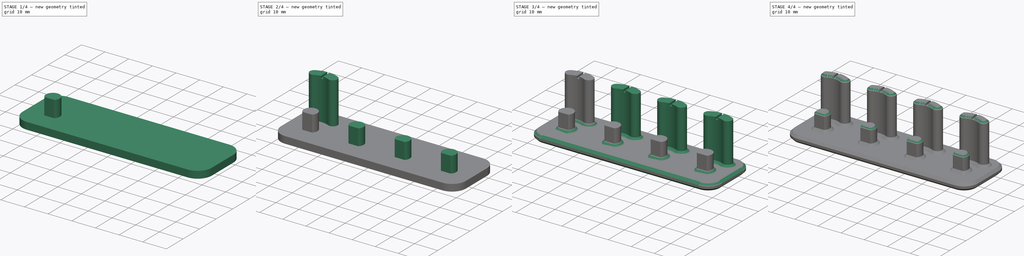
[diagram: build sequence overview — one tinted view per stage of 4, left to right]
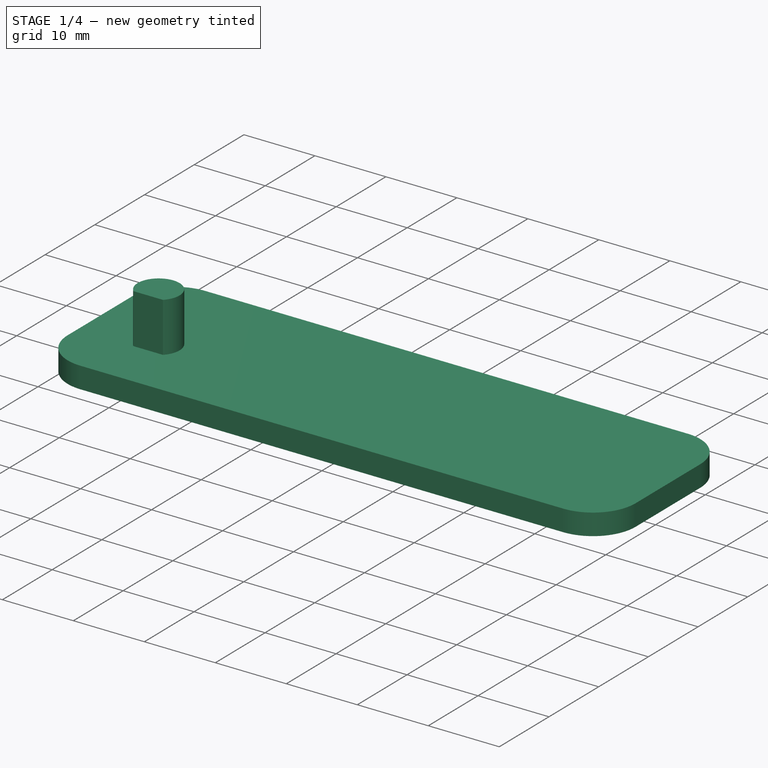
[diagram: stage 1 of 4 — iso view after this stage's code; geometry added in this stage tinted green]
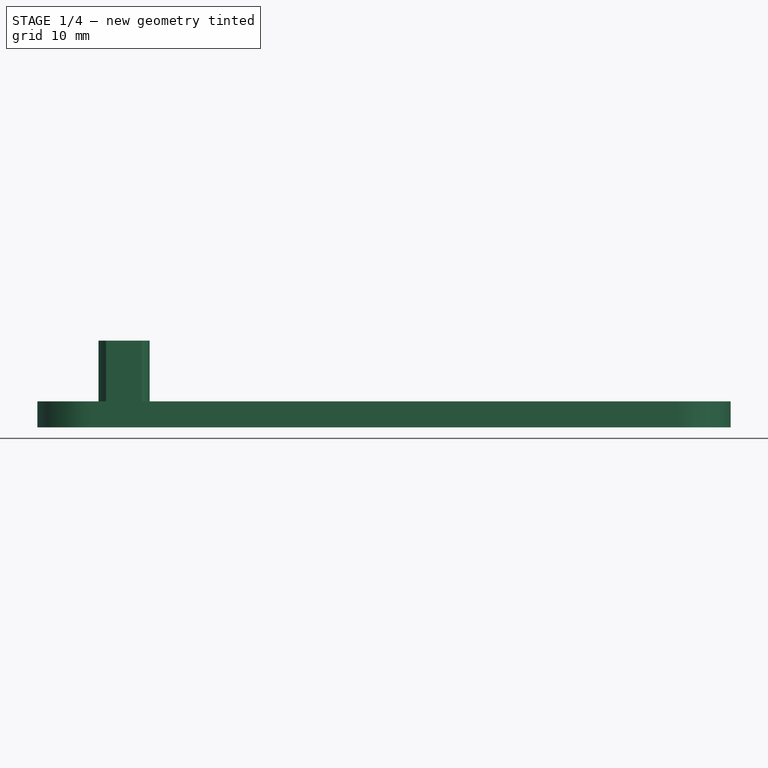
[diagram: stage 1 of 4 — front view after this stage's code; geometry added in this stage tinted green]
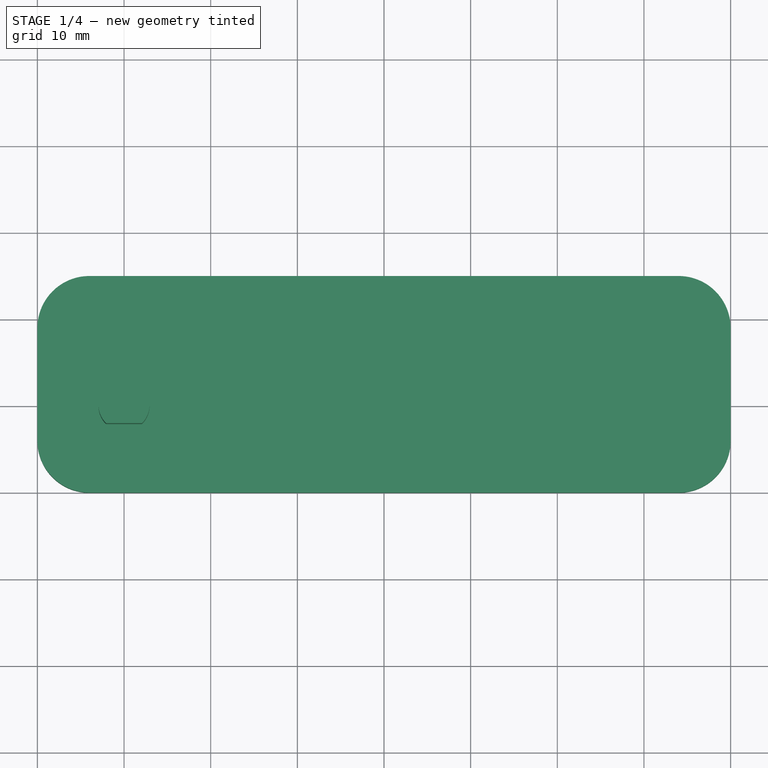
[diagram: stage 1 of 4 — top view after this stage's code; geometry added in this stage tinted green]
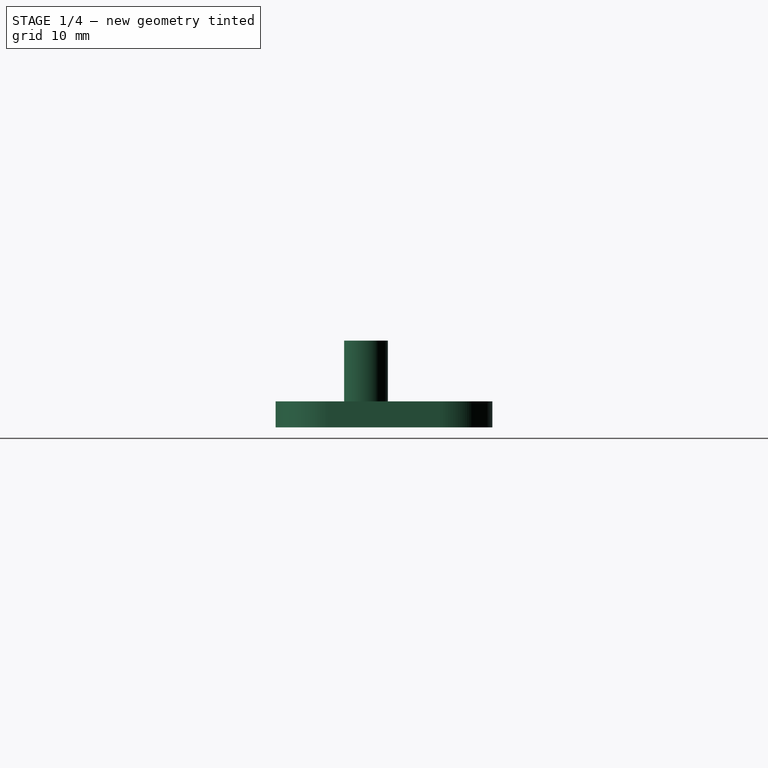
[diagram: stage 1 of 4 — right view after this stage's code; geometry added in this stage tinted green]
FCSTD DOCUMENT  (FreeCAD 0.18R4 (GitTag))
Label: pot_cap_alignment_jig
License: All rights reserved
LicenseURL: http://en.wikipedia.org/wiki/All_rights_reserved
objects: Sketcher::SketchObject×4, PartDesign::Pad×3, PartDesign::LinearPattern×3, PartDesign::Chamfer×3, PartDesign::Pocket×1, PartDesign::Body×1
note: 19 computed .brp shape members not serialized (recipe doc carries the construction recipe); baked Part::Feature solids carry a one-line shape summary decoded from their .brp

FEATURE [Sketcher::SketchObject] Sketch
  MapMode = 5
  Support = -> [XY_Plane]
  sketch-geometry (10):
    g0: LineSegment StartX=-34 StartY=15 StartZ=0 EndX=34 EndY=15 EndZ=0
    g1: LineSegment StartX=40 StartY=9 StartZ=0 EndX=40 EndY=-4 EndZ=0
    g2: LineSegment StartX=34 StartY=-10 StartZ=0 EndX=-34 EndY=-10 EndZ=0
    g3: LineSegment StartX=-40 StartY=-4 StartZ=0 EndX=-40 EndY=9 EndZ=0
    g4: ArcOfCircle CenterX=-34 CenterY=9 CenterZ=0 NormalX=0 NormalY=0 NormalZ=1 AngleXU=0 Radius=6 StartAngle=1.5708 EndAngle=3.14159
    g5: ArcOfCircle CenterX=34 CenterY=9 CenterZ=0 NormalX=0 NormalY=0 NormalZ=1 AngleXU=0 Radius=6 StartAngle=0 EndAngle=1.5708
    g6: ArcOfCircle CenterX=34 CenterY=-4 CenterZ=0 NormalX=0 NormalY=0 NormalZ=1 AngleXU=0 Radius=6 StartAngle=4.71239 EndAngle=6.28319
    g7: ArcOfCircle CenterX=-34 CenterY=-4 CenterZ=0 NormalX=0 NormalY=0 NormalZ=1 AngleXU=0 Radius=6 StartAngle=3.14159 EndAngle=4.71239
    g8: LineSegment [constr] StartX=-34 StartY=9 StartZ=0 EndX=0 EndY=0 EndZ=0
    g9: LineSegment [constr] StartX=0 StartY=0 StartZ=0 EndX=34 EndY=9 EndZ=0
  constraints (24):
    c: Horizontal(g0)
    c: Horizontal(g2)
    c: Vertical(g1)
    c: Vertical(g3)
    c: Tangent(g3,g4) = 1.5708
    c: Tangent(g0,g4) = 1.5708
    c: Tangent(g0,g5) = 1.5708
    c: Tangent(g1,g5) = 1.5708
    c: Tangent(g1,g6) = 1.5708
    c: Tangent(g2,g6) = 1.5708
    c: Tangent(g2,g7) = 1.5708
    c: Tangent(g3,g7) = 1.5708
    c: Equal(g7,g4)
    c: Equal(g4,g5)
    c: Equal(g5,g6)
    c: Coincident(g8,g4)
    c: Coincident(g8,g-1)
    c: Coincident(g8,g9)
    c: Coincident(g9,g5)
    c: Equal(g8,g9)
    c: DistanceX(g3,g1) = 80
    c: Radius(g4) = 6
    c: DistanceY(g-1,g0) = 15
    c: DistanceY(g2,g-1) = 10
FEATURE [PartDesign::Pad] Pad
  Length = 3
  Length2 = 100
  Profile = -> Sketch
  Type = 0
FEATURE [Sketcher::SketchObject] Sketch001
  MapMode = 5
  Placement = pos=(0,0,3) rot=(0,0,1;0rad)
  Support = -> [Pad]
  sketch-geometry (2):
    g0: LineSegment StartX=-32.0718 StartY=-2.1 StartZ=0 EndX=-27.9282 EndY=-2.1 EndZ=0
    g1: ArcOfCircle CenterX=-30 CenterY=0 CenterZ=0 NormalX=0 NormalY=0 NormalZ=1 AngleXU=0 Radius=2.95 StartAngle=5.49104 EndAngle=10.2169
  constraints (7):
    c: Horizontal(g0)
    c: Coincident(g1,g0)
    c: Coincident(g1,g0)
    c: Diameter(g1) = 5.9
    c: DistanceY(g0,g1) = 2.1
    c: PointOnObject(g1,g-1)
    c: DistanceX(g1,g-1) = 30
FEATURE [PartDesign::Pad] Pad001
  BaseFeature = -> Pad
  Length = 7
  Length2 = 100
  Profile = -> Sketch001
  Type = 0
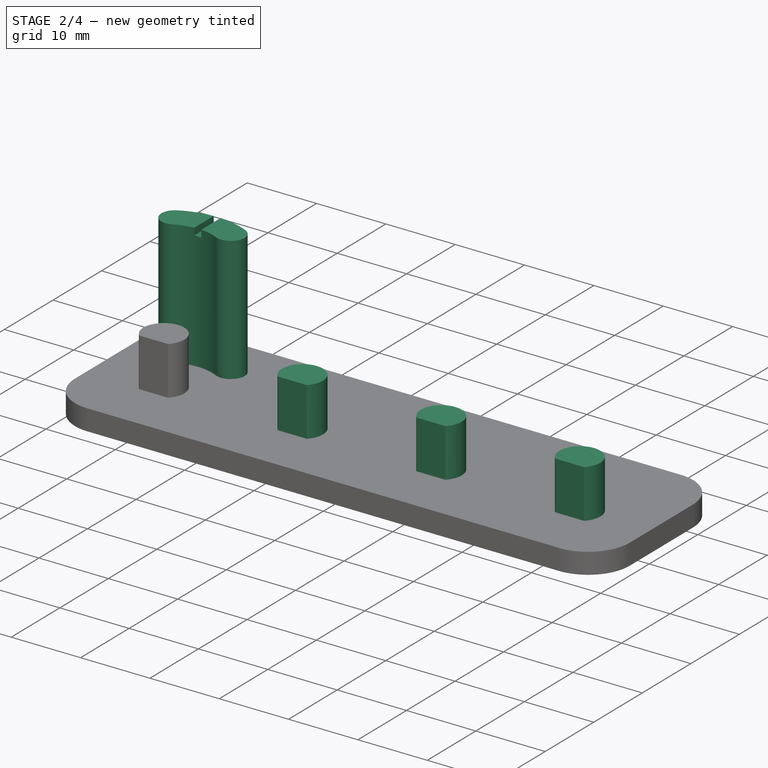
[diagram: stage 2 of 4 — iso view after this stage's code; geometry added in this stage tinted green]
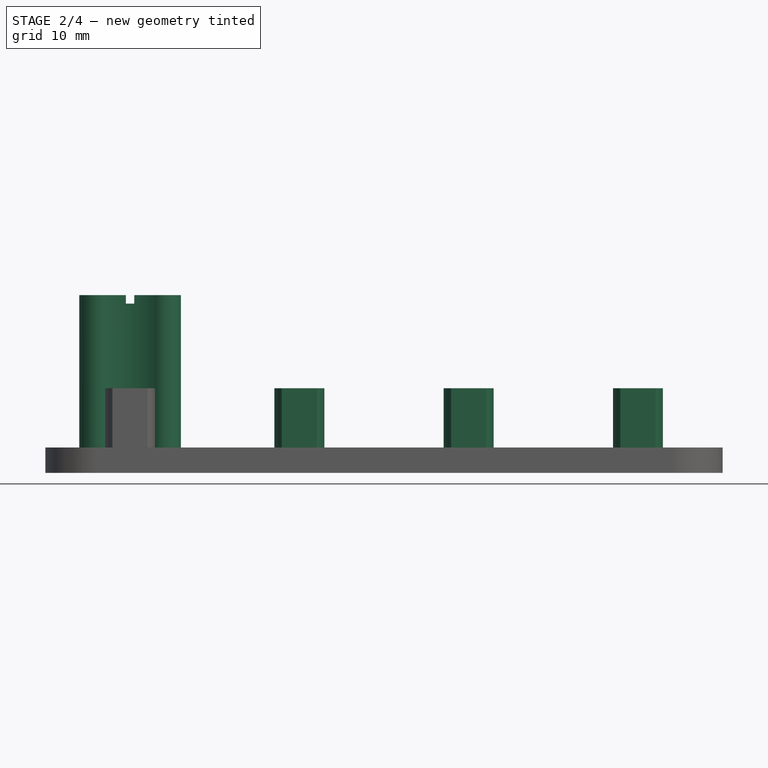
[diagram: stage 2 of 4 — front view after this stage's code; geometry added in this stage tinted green]
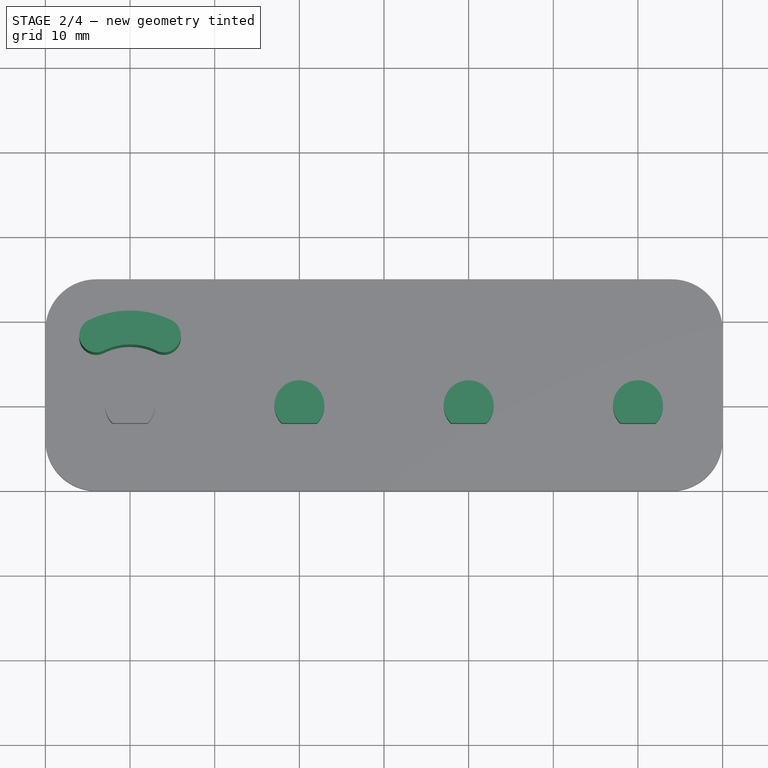
[diagram: stage 2 of 4 — top view after this stage's code; geometry added in this stage tinted green]
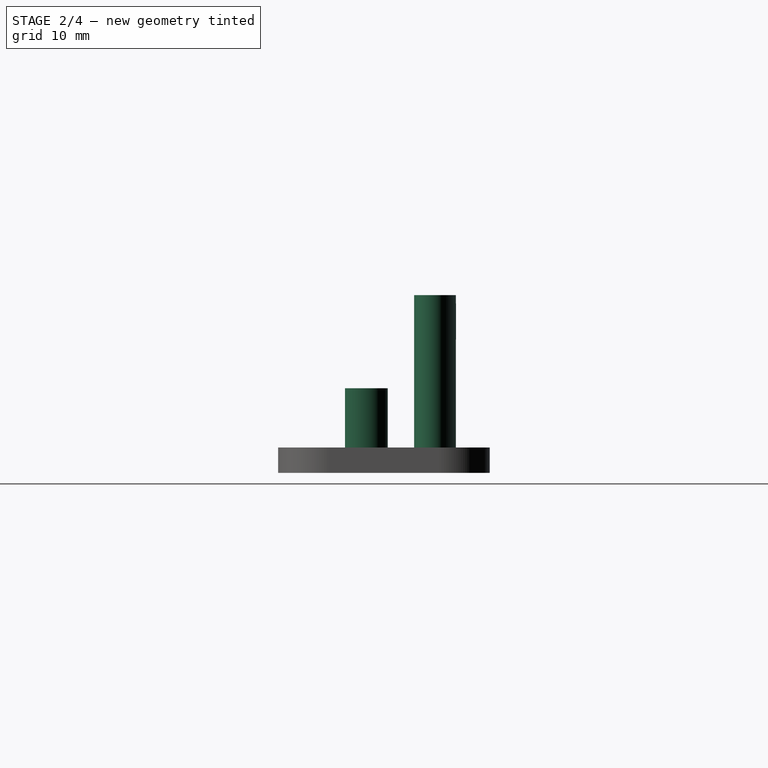
[diagram: stage 2 of 4 — right view after this stage's code; geometry added in this stage tinted green]
FEATURE [Sketcher::SketchObject] Sketch002
  MapMode = 5
  Placement = pos=(0,0,3) rot=(0,0,1;0rad)
  Support = -> [Pad001]
  sketch-geometry (6):
    g0: ArcOfCircle CenterX=-30 CenterY=0 CenterZ=0 NormalX=0 NormalY=0 NormalZ=1 AngleXU=0 Radius=7 StartAngle=1.11024 EndAngle=2.03135
    g1: ArcOfCircle CenterX=-30 CenterY=0 CenterZ=0 NormalX=0 NormalY=0 NormalZ=1 AngleXU=0 Radius=11 StartAngle=1.11024 EndAngle=2.03135
    g2: ArcOfCircle CenterX=-34 CenterY=8.06226 CenterZ=0 NormalX=0 NormalY=0 NormalZ=1 AngleXU=0 Radius=2 StartAngle=2.03135 EndAngle=5.17294
    g3: ArcOfCircle CenterX=-26 CenterY=8.06226 CenterZ=0 NormalX=0 NormalY=0 NormalZ=1 AngleXU=0 Radius=2 StartAngle=4.25183 EndAngle=7.39343
    g4: LineSegment [constr] StartX=-34 StartY=8.06226 StartZ=0 EndX=-34 EndY=0 EndZ=0
    g5: LineSegment [constr] StartX=-26 StartY=8.06226 StartZ=0 EndX=-26 EndY=0 EndZ=0
  constraints (17):
    c: PointOnObject(g0,g-1)
    c: Coincident(g1,g0)
    c: Tangent(g2,g1) = -1.5708
    c: Tangent(g3,g1) = -1.5708
    c: Tangent(g3,g0) = 1.5708
    c: Tangent(g2,g0) = 1.5708
    c: Coincident(g4,g2)
    c: PointOnObject(g4,g-1)
    c: Vertical(g4)
    c: Coincident(g5,g3)
    c: PointOnObject(g5,g-1)
    c: Vertical(g5)
    c: Equal(g5,g4)
    c: DistanceX(g0,g-1) = 30
    c: Diameter(g2) = 4
    c: Radius(g0) = 7
    c: DistanceX(g2,g3) = 8
FEATURE [PartDesign::Pad] Pad002
  BaseFeature = -> Pad001
  Length = 18
  Length2 = 100
  Profile = -> Sketch002
  Type = 0
FEATURE [Sketcher::SketchObject] Sketch003
  MapMode = 5
  Placement = pos=(0,0,21) rot=(0,0,1;0rad)
  Support = -> [Pad002]
  sketch-geometry (6):
    g0: LineSegment StartX=-30.5 StartY=14.8544 StartZ=0 EndX=-29.5 EndY=14.8544 EndZ=0
    g1: LineSegment StartX=-29.5 StartY=14.8544 StartZ=0 EndX=-29.5 EndY=4.52572 EndZ=0
    g2: LineSegment StartX=-29.5 StartY=4.52572 StartZ=0 EndX=-30.5 EndY=4.52572 EndZ=0
    g3: LineSegment StartX=-30.5 StartY=4.52572 StartZ=0 EndX=-30.5 EndY=14.8544 EndZ=0
    g4: LineSegment [constr] StartX=-30.5 StartY=4.52572 StartZ=0 EndX=-30 EndY=0 EndZ=0
    g5: LineSegment [constr] StartX=-30 StartY=0 StartZ=0 EndX=-29.5 EndY=4.52572 EndZ=0
  constraints (15):
    c: Coincident(g0,g1)
    c: Coincident(g1,g2)
    c: Coincident(g2,g3)
    c: Coincident(g3,g0)
    c: Horizontal(g0)
    c: Horizontal(g2)
    c: Vertical(g1)
    c: Vertical(g3)
    c: Coincident(g2,g4)
    c: PointOnObject(g4,g-1)
    c: Coincident(g4,g5)
    c: Coincident(g5,g1)
    c: Equal(g5,g4)
    c: DistanceX(g4,g-1) = 30
    c: DistanceX(g0,g0) = 1
FEATURE [PartDesign::Pocket] Pocket
  BaseFeature = -> Pad002
  Length = 1
  Length2 = 100
  Profile = -> Sketch003
  Type = 0
FEATURE [PartDesign::LinearPattern] LinearPattern
  BaseFeature = -> Pocket
  Direction = -> X_Axis
  Length = 60
  Occurrences = 4
  Originals = -> [Pad001]
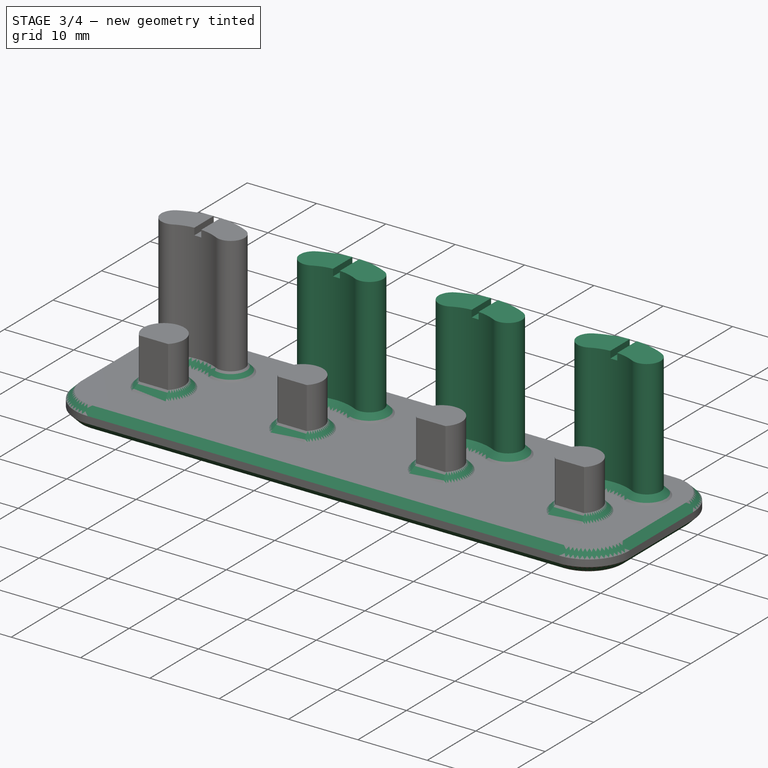
[diagram: stage 3 of 4 — iso view after this stage's code; geometry added in this stage tinted green]
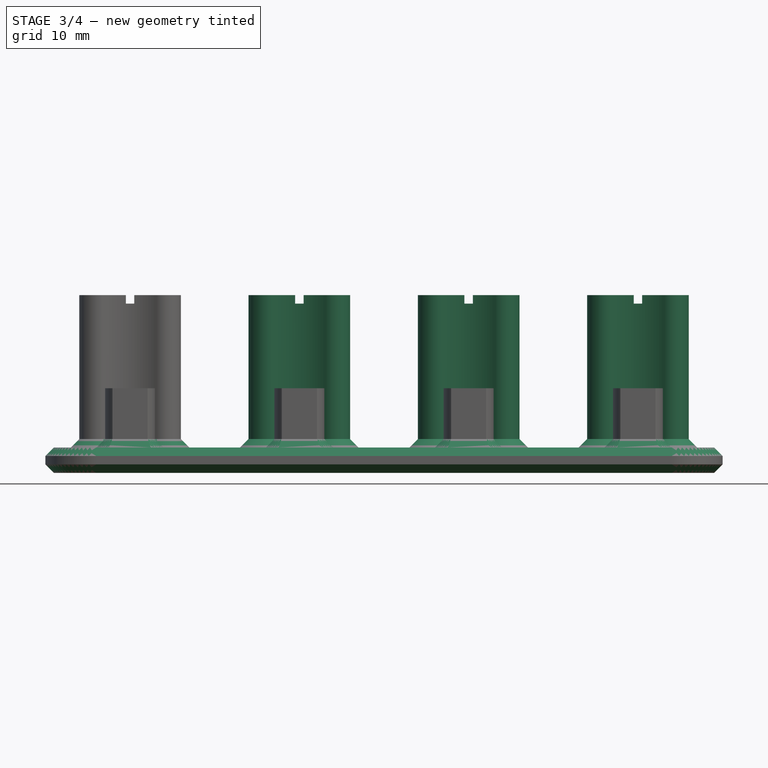
[diagram: stage 3 of 4 — front view after this stage's code; geometry added in this stage tinted green]
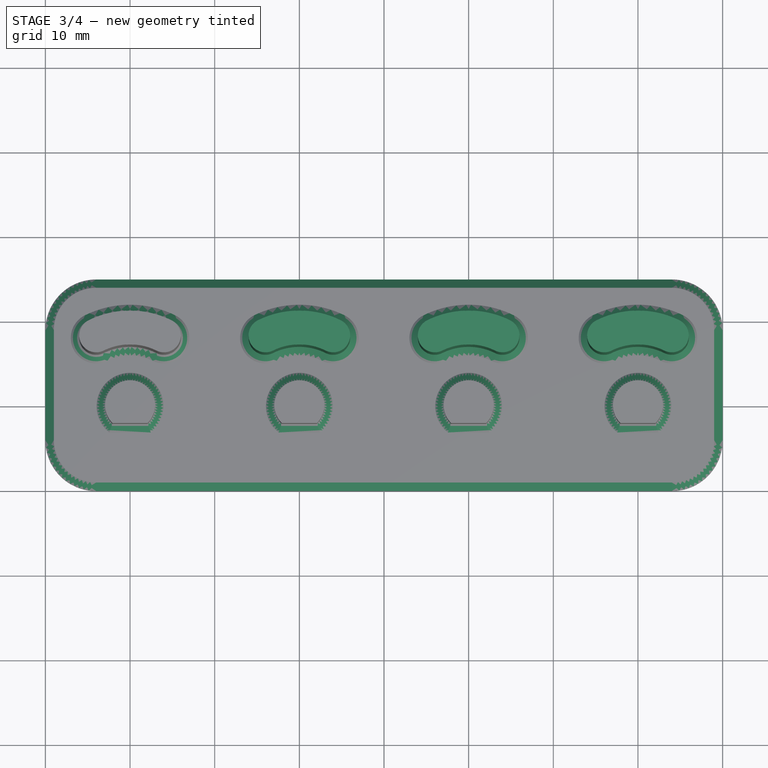
[diagram: stage 3 of 4 — top view after this stage's code; geometry added in this stage tinted green]
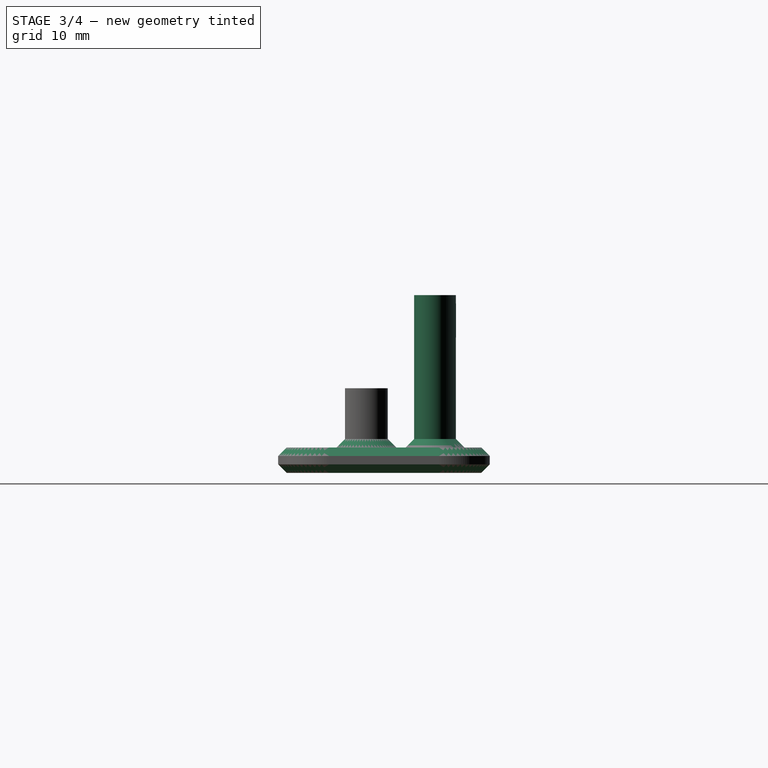
[diagram: stage 3 of 4 — right view after this stage's code; geometry added in this stage tinted green]
FEATURE [PartDesign::LinearPattern] LinearPattern001
  BaseFeature = -> LinearPattern
  Direction = -> X_Axis
  Length = 60
  Occurrences = 4
  Originals = -> [Pad002]
FEATURE [PartDesign::LinearPattern] LinearPattern002
  BaseFeature = -> LinearPattern001
  Direction = -> X_Axis
  Length = 60
  Occurrences = 4
  Originals = -> [Pocket]
FEATURE [PartDesign::Chamfer] Chamfer
  Base = -> LinearPattern002 [Face5,Face4]
  BaseFeature = -> LinearPattern002
  Size = 1
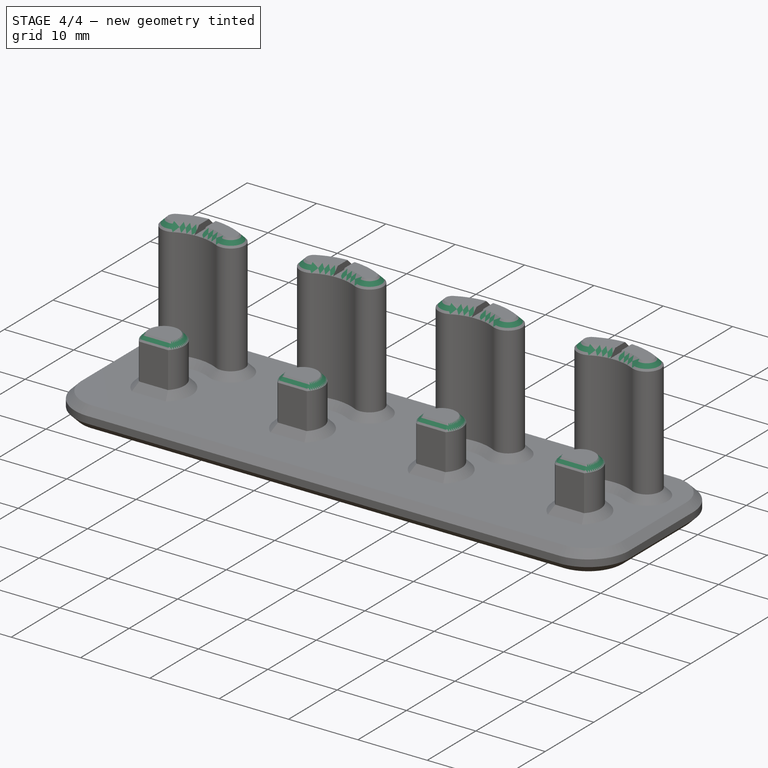
[diagram: stage 4 of 4 — iso view after this stage's code; geometry added in this stage tinted green]
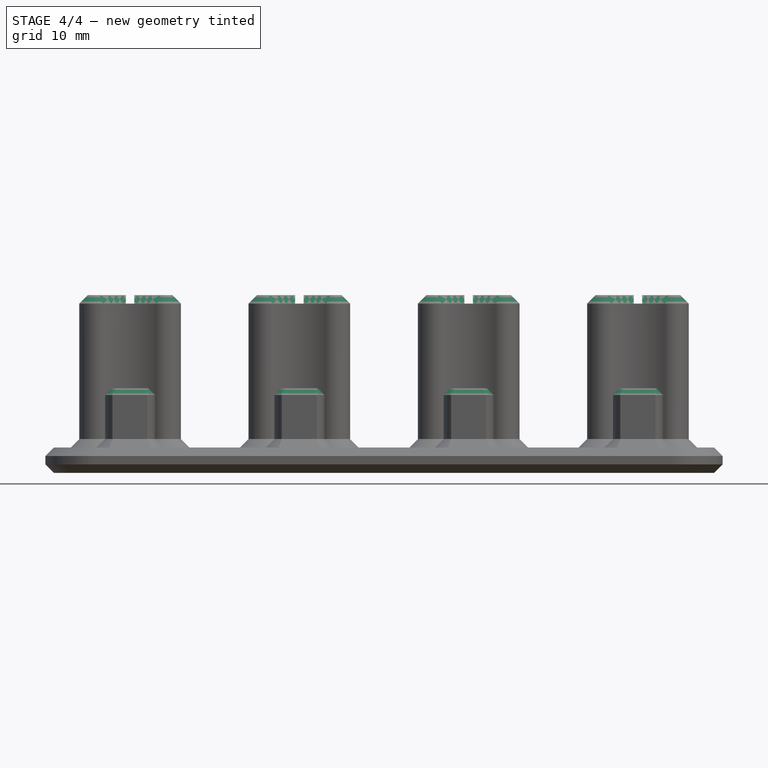
[diagram: stage 4 of 4 — front view after this stage's code; geometry added in this stage tinted green]
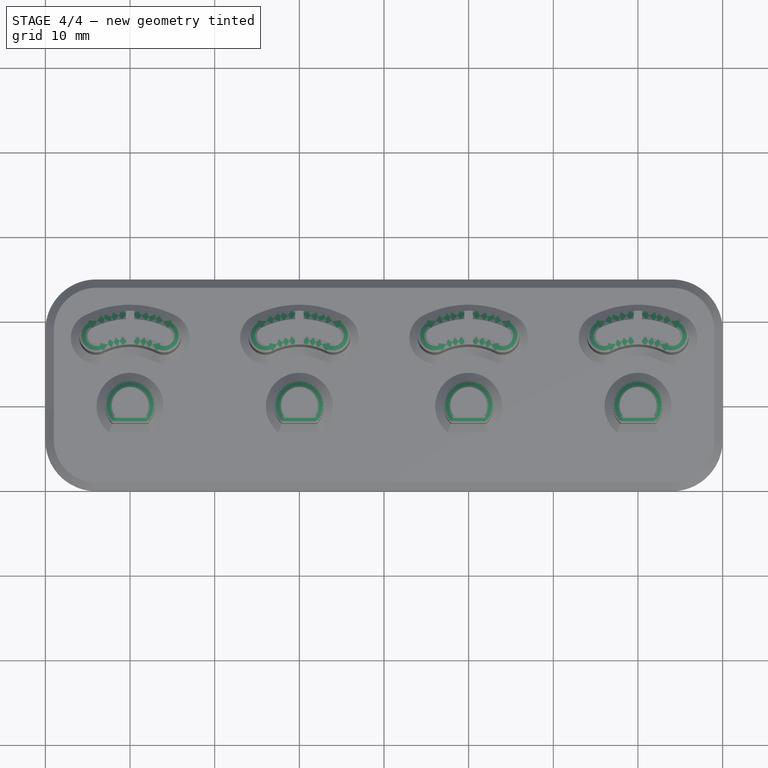
[diagram: stage 4 of 4 — top view after this stage's code; geometry added in this stage tinted green]
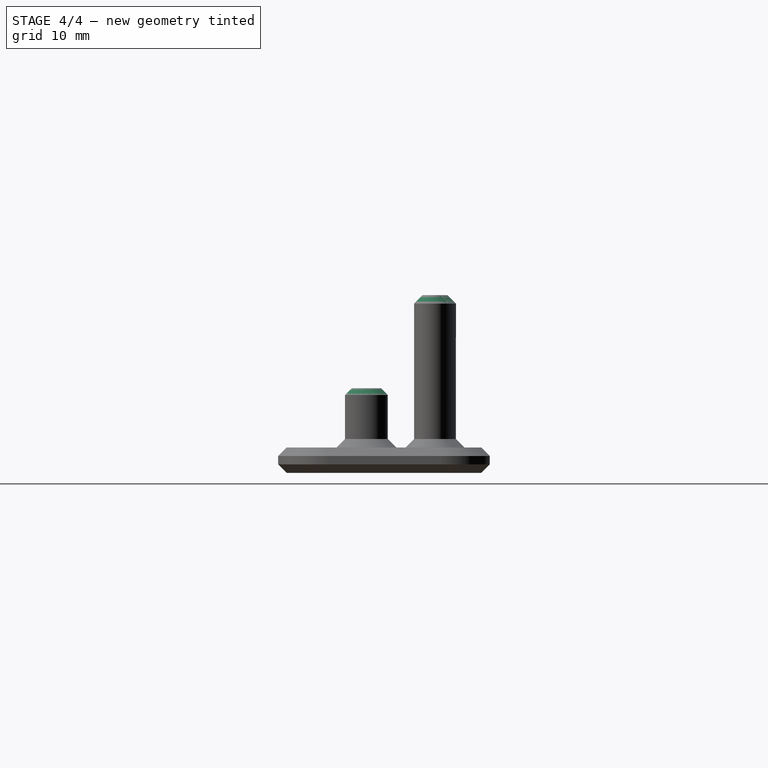
[diagram: stage 4 of 4 — right view after this stage's code; geometry added in this stage tinted green]
FEATURE [PartDesign::Chamfer] Chamfer001
  Base = -> Chamfer [Face90,Face97,Face98,Face91]
  BaseFeature = -> Chamfer
  Size = 0.8
FEATURE [PartDesign::Chamfer] Chamfer002
  Base = -> Chamfer001 [Edge163,Edge160,Edge147,Edge144,Edge131,Edge128,Edge183,Edge180]
  BaseFeature = -> Chamfer001
  Size = 1
FEATURE [PartDesign::Body] Body
  Group = -> [Sketch,Pad,Sketch001,Pad001,Sketch002,Pad002,Sketch003,Pocket,LinearPattern,LinearPattern001,LinearPattern002,Chamfer,Chamfer001,Chamfer002]
  Origin = -> Origin
  Tip = -> Chamfer002
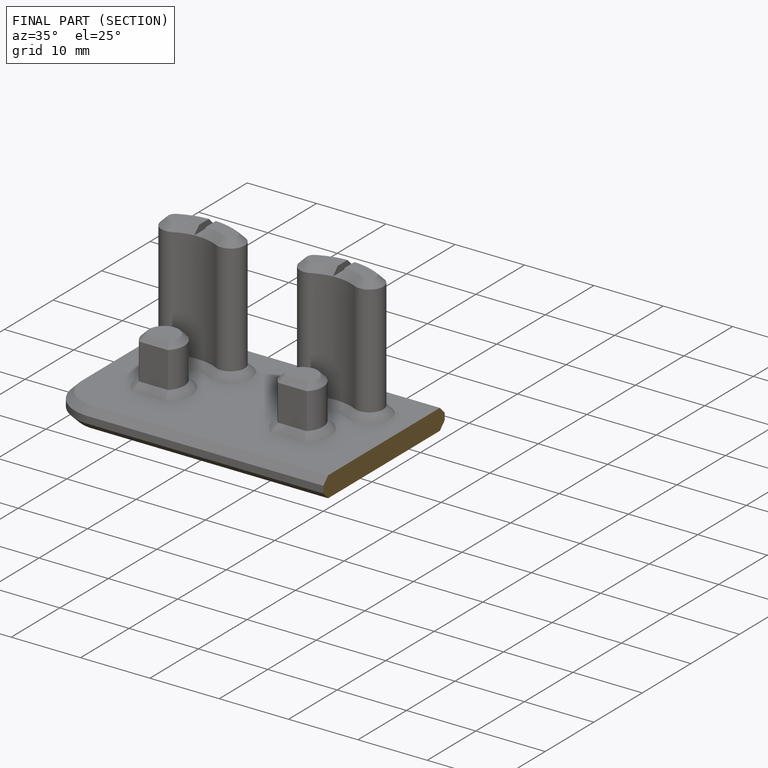
[diagram: finished part — half-section view (interior)]
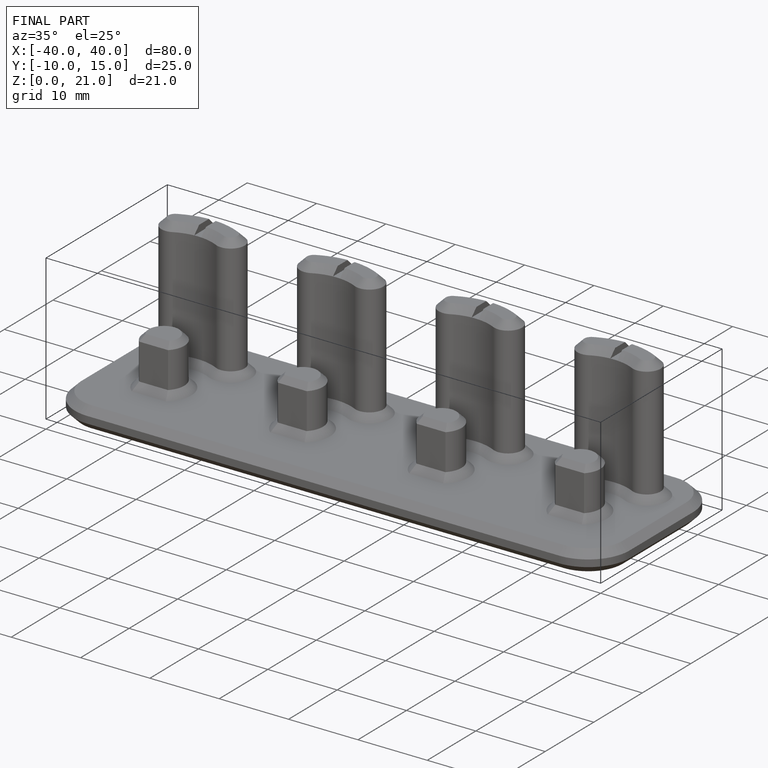
[diagram: finished part — iso view with bounding-box wireframe]
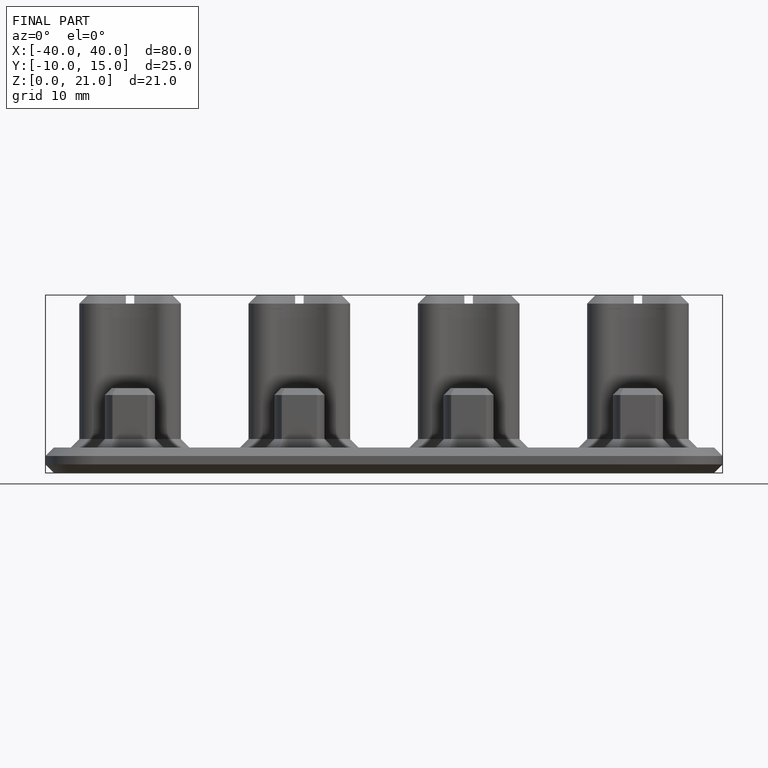
[diagram: finished part — front view with bounding-box wireframe]
